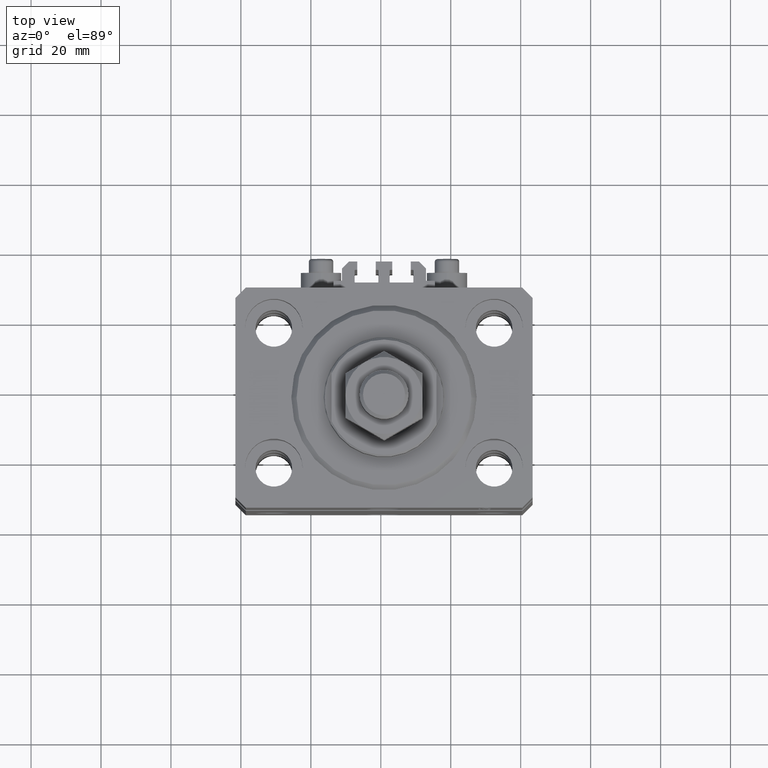
[diagram: clean part render]
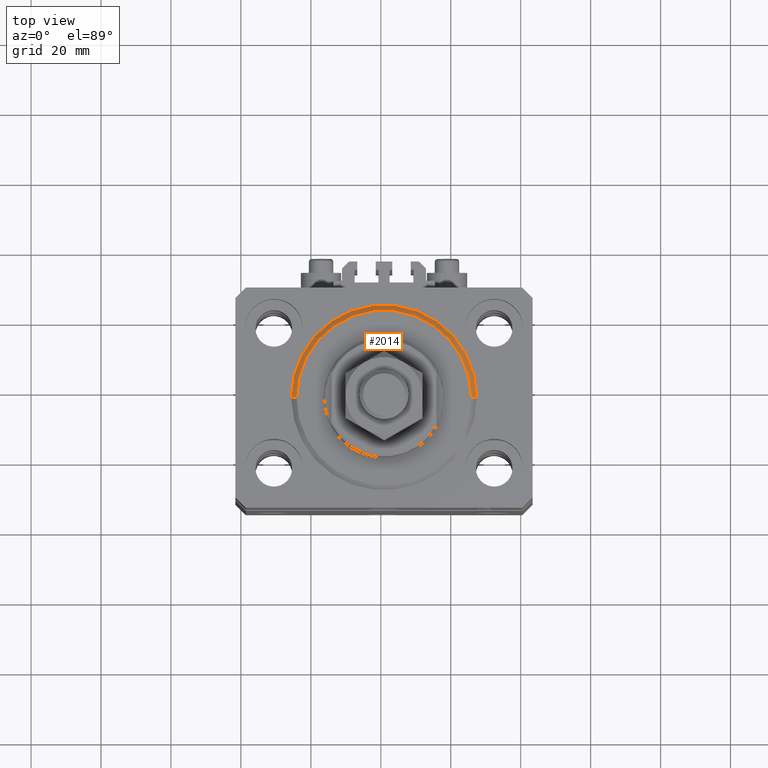
[diagram: same view with one face highlighted and labeled with its STEP entity id]
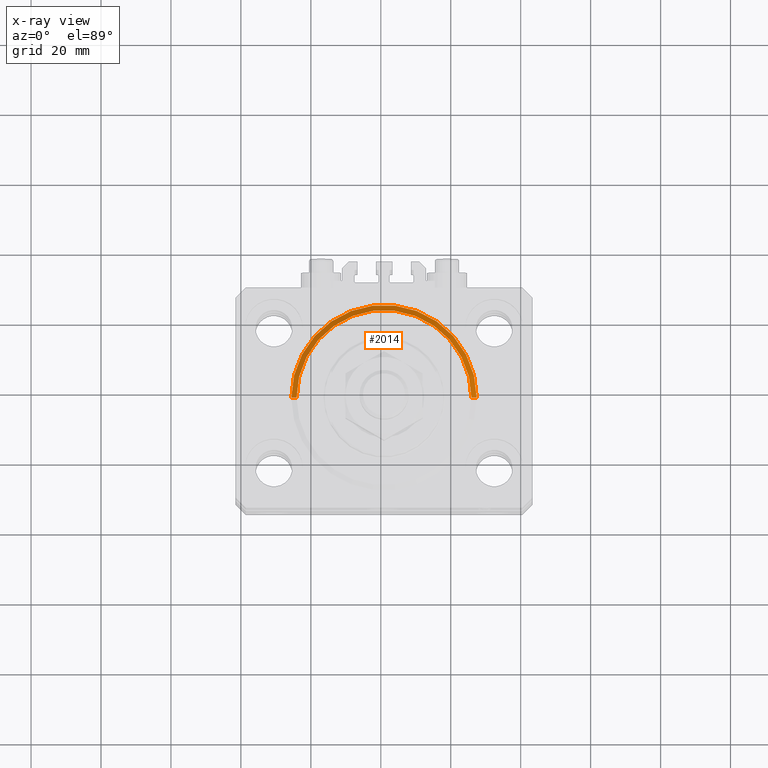
[diagram: x-ray of the same camera — body ghosted, the highlighted face saturated]
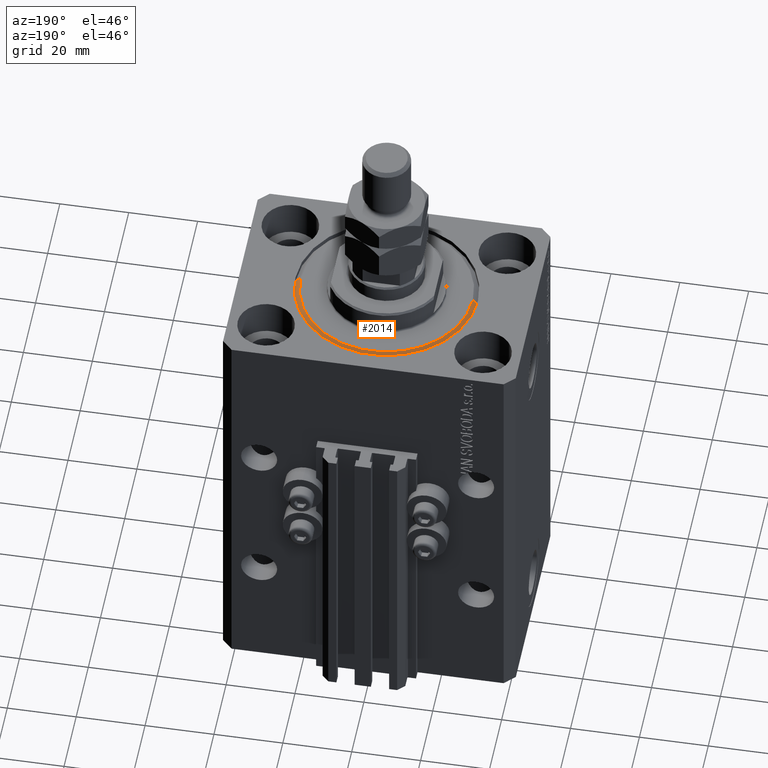
[diagram: same view with one face highlighted and labeled with its STEP entity id]
A machine part, top view. The second image highlights one B-rep face of the part: STEP entity #2014.
The next image is the same camera in x-ray: the body ghosted, the highlighted face saturated — about 0% of this face is hidden behind the body in this view.
A second angle (auxiliary view) of the same face is appended — the face is thin or edge-on in the first view.
In plain terms, the highlighted conical surface has half-angle 45 deg.
Its self-contained STEP definition (entity closure, byte-faithful):
#2014 = ADVANCED_FACE ( 'NONE', ( #6990 ), #43356, .T. ) ;
#6910 = DIRECTION ( 'NONE',  ( -0.7071067811865483499, 8.659560562354942719E-17, 0.7071067811865466846 ) ) ;
#6990 = FACE_OUTER_BOUND ( 'NONE', #34217, .T. ) ;
#7804 = EDGE_CURVE ( 'NONE', #25635, #42141, #31457, .T. ) ;
#10412 = EDGE_CURVE ( 'NONE', #42141, #47612, #20485, .T. ) ;
#11280 = CARTESIAN_POINT ( 'NONE',  ( 26.50000000000000355, 0.000000000000000000, 1.500000000000018652 ) ) ;
#11497 = DIRECTION ( 'NONE',  ( -0.000000000000000000, -0.000000000000000000, 1.000000000000000000 ) ) ;
#13105 = CARTESIAN_POINT ( 'NONE',  ( 24.99999999999998224, 0.000000000000000000, 0.000000000000000000 ) ) ;
#14514 = CARTESIAN_POINT ( 'NONE',  ( 0.000000000000000000, 0.000000000000000000, 1.500000000000018652 ) ) ;
#16237 = EDGE_CURVE ( 'NONE', #47612, #47759, #45481, .T. ) ;
#18948 = CARTESIAN_POINT ( 'NONE',  ( 0.000000000000000000, 0.000000000000000000, 0.000000000000000000 ) ) ;
#19316 = DIRECTION ( 'NONE',  ( -0.000000000000000000, -0.000000000000000000, 1.000000000000000000 ) ) ;
#20485 = LINE ( 'NONE', #11280, #21110 ) ;
#21110 = VECTOR ( 'NONE', #22573, 1000.000000000000000 ) ;
#22321 = DIRECTION ( 'NONE',  ( 1.000000000000000000, 0.000000000000000000, 0.000000000000000000 ) ) ;
#22573 = DIRECTION ( 'NONE',  ( 0.7071067811865483499, 0.000000000000000000, 0.7071067811865466846 ) ) ;
#24276 = EDGE_CURVE ( 'NONE', #25635, #47759, #48851, .T. ) ;
#25635 = VERTEX_POINT ( 'NONE', #34734 ) ;
#25736 = AXIS2_PLACEMENT_3D ( 'NONE', #34360, #19316, #22321 ) ;
#25815 = DIRECTION ( 'NONE',  ( 1.000000000000000000, 0.000000000000000000, 0.000000000000000000 ) ) ;
#29662 = ORIENTED_EDGE ( 'NONE', *, *, #16237, .F. ) ;
#30633 = AXIS2_PLACEMENT_3D ( 'NONE', #18948, #42782, #49327 ) ;
#31457 = CIRCLE ( 'NONE', #30633, 24.99999999999998224 ) ;
#31636 = ORIENTED_EDGE ( 'NONE', *, *, #24276, .T. ) ;
#33792 = CARTESIAN_POINT ( 'NONE',  ( -26.50000000000000355, 3.245314017740486554E-15, 1.500000000000018652 ) ) ;
#34217 = EDGE_LOOP ( 'NONE', ( #42261, #31636, #29662, #38724 ) ) ;
#34229 = AXIS2_PLACEMENT_3D ( 'NONE', #14514, #11497, #25815 ) ;
#34360 = CARTESIAN_POINT ( 'NONE',  ( 0.000000000000000000, 0.000000000000000000, 1.500000000000018652 ) ) ;
#34734 = CARTESIAN_POINT ( 'NONE',  ( -24.99999999999998224, 3.153465507804433615E-15, 0.000000000000000000 ) ) ;
#38095 = VECTOR ( 'NONE', #6910, 1000.000000000000000 ) ;
#38724 = ORIENTED_EDGE ( 'NONE', *, *, #10412, .F. ) ;
#42141 = VERTEX_POINT ( 'NONE', #13105 ) ;
#42261 = ORIENTED_EDGE ( 'NONE', *, *, #7804, .F. ) ;
#42782 = DIRECTION ( 'NONE',  ( -0.000000000000000000, -0.000000000000000000, -1.000000000000000000 ) ) ;
#43356 = CONICAL_SURFACE ( 'NONE', #25736, 26.50000000000000355, 0.7853981633974495002 ) ;
#45481 = CIRCLE ( 'NONE', #34229, 26.50000000000000355 ) ;
#45970 = CARTESIAN_POINT ( 'NONE',  ( 26.50000000000000355, 3.245314017740486554E-15, 1.500000000000018652 ) ) ;
#47612 = VERTEX_POINT ( 'NONE', #45970 ) ;
#47759 = VERTEX_POINT ( 'NONE', #47938 ) ;
#47938 = CARTESIAN_POINT ( 'NONE',  ( -26.50000000000000355, 0.000000000000000000, 1.500000000000018652 ) ) ;
#48851 = LINE ( 'NONE', #33792, #38095 ) ;
#49327 = DIRECTION ( 'NONE',  ( 1.000000000000000000, 0.000000000000000000, 0.000000000000000000 ) ) ;